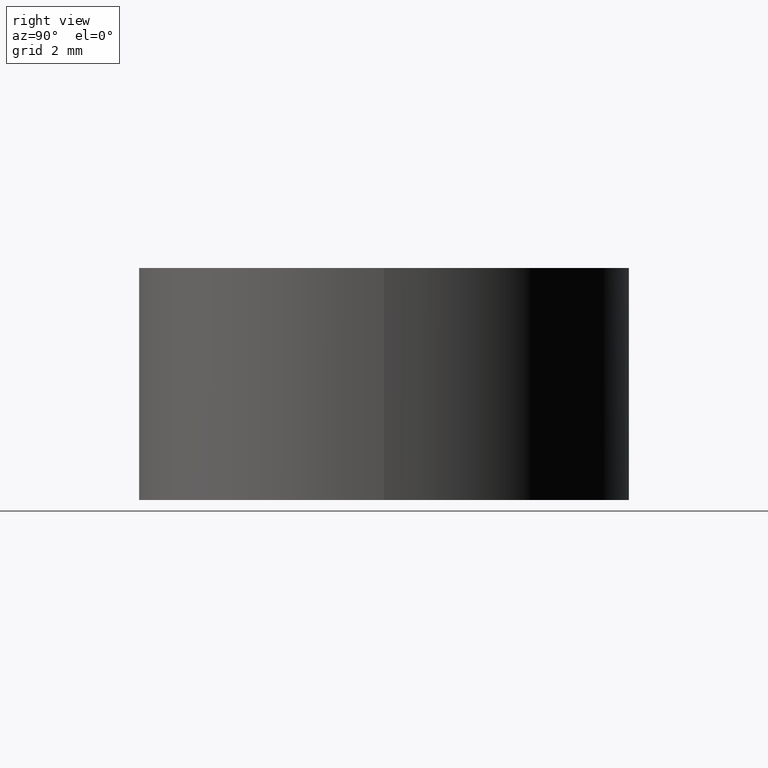
[diagram: clean part render]
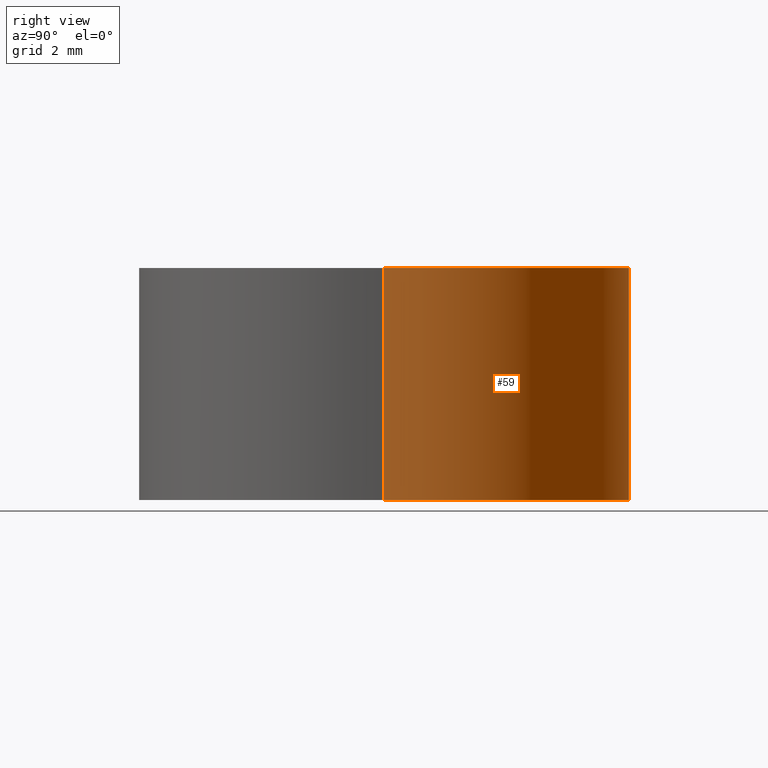
[diagram: same view with one face highlighted and labeled with its STEP entity id]
A machine part, right view. The second image highlights one B-rep face of the part: STEP entity #59.
In plain terms, the highlighted cylindrical surface (partial cylindrical patch) has radius 6.35 mm, axis along (-0, -0, -1).
Its self-contained STEP definition (entity closure, byte-faithful):
#1 = CARTESIAN_POINT ( 'NONE',  ( -6.349999999999997868, 0.000000000000000000, 5.999999999999998224 ) ) ;
#3 = LINE ( 'NONE', #119, #201 ) ;
#4 = LINE ( 'NONE', #68, #38 ) ;
#6 = DIRECTION ( 'NONE',  ( -0.000000000000000000, -0.000000000000000000, -1.000000000000000000 ) ) ;
#8 = EDGE_CURVE ( 'NONE', #54, #79, #3, .T. ) ;
#15 = AXIS2_PLACEMENT_3D ( 'NONE', #137, #192, #86 ) ;
#19 = ORIENTED_EDGE ( 'NONE', *, *, #97, .T. ) ;
#20 = CIRCLE ( 'NONE', #146, 6.349999999999999645 ) ;
#36 = VERTEX_POINT ( 'NONE', #1 ) ;
#38 = VECTOR ( 'NONE', #6, 1000.000000000000000 ) ;
#39 = DIRECTION ( 'NONE',  ( 1.000000000000000000, 0.000000000000000000, 0.000000000000000000 ) ) ;
#50 = EDGE_CURVE ( 'NONE', #36, #147, #4, .T. ) ;
#54 = VERTEX_POINT ( 'NONE', #105 ) ;
#59 = ADVANCED_FACE ( 'NONE', ( #177 ), #175, .T. ) ;
#67 = ORIENTED_EDGE ( 'NONE', *, *, #8, .T. ) ;
#68 = CARTESIAN_POINT ( 'NONE',  ( -6.349999999999999645, 0.000000000000000000, 6.000000000000000000 ) ) ;
#79 = VERTEX_POINT ( 'NONE', #109 ) ;
#85 = DIRECTION ( 'NONE',  ( -0.000000000000000000, -0.000000000000000000, -1.000000000000000000 ) ) ;
#86 = DIRECTION ( 'NONE',  ( -1.000000000000000000, 0.000000000000000000, 0.000000000000000000 ) ) ;
#88 = EDGE_CURVE ( 'NONE', #79, #147, #20, .T. ) ;
#89 = AXIS2_PLACEMENT_3D ( 'NONE', #123, #85, #39 ) ;
#95 = DIRECTION ( 'NONE',  ( 1.000000000000000000, 0.000000000000000000, 0.000000000000000000 ) ) ;
#97 = EDGE_CURVE ( 'NONE', #36, #54, #181, .T. ) ;
#104 = ORIENTED_EDGE ( 'NONE', *, *, #50, .F. ) ;
#105 = CARTESIAN_POINT ( 'NONE',  ( 6.350000000000006750, 7.776507174585701038E-16, 5.999999999999998224 ) ) ;
#109 = CARTESIAN_POINT ( 'NONE',  ( 6.349999999999999645, 7.776507174585692163E-16, 0.000000000000000000 ) ) ;
#119 = CARTESIAN_POINT ( 'NONE',  ( 6.349999999999999645, 7.776507174585692163E-16, 6.000000000000000000 ) ) ;
#122 = CARTESIAN_POINT ( 'NONE',  ( -6.349999999999999645, 0.000000000000000000, 0.000000000000000000 ) ) ;
#123 = CARTESIAN_POINT ( 'NONE',  ( 4.336808689942017736E-15, 0.000000000000000000, 5.999999999999998224 ) ) ;
#136 = EDGE_LOOP ( 'NONE', ( #19, #67, #173, #104 ) ) ;
#137 = CARTESIAN_POINT ( 'NONE',  ( 0.000000000000000000, 0.000000000000000000, 6.000000000000000000 ) ) ;
#146 = AXIS2_PLACEMENT_3D ( 'NONE', #158, #179, #95 ) ;
#147 = VERTEX_POINT ( 'NONE', #122 ) ;
#153 = DIRECTION ( 'NONE',  ( -0.000000000000000000, -0.000000000000000000, -1.000000000000000000 ) ) ;
#158 = CARTESIAN_POINT ( 'NONE',  ( 0.000000000000000000, 0.000000000000000000, 0.000000000000000000 ) ) ;
#173 = ORIENTED_EDGE ( 'NONE', *, *, #88, .T. ) ;
#175 = CYLINDRICAL_SURFACE ( 'NONE', #15, 6.349999999999999645 ) ;
#177 = FACE_OUTER_BOUND ( 'NONE', #136, .T. ) ;
#179 = DIRECTION ( 'NONE',  ( 0.000000000000000000, 0.000000000000000000, 1.000000000000000000 ) ) ;
#181 = CIRCLE ( 'NONE', #89, 6.350000000000002309 ) ;
#192 = DIRECTION ( 'NONE',  ( -0.000000000000000000, -0.000000000000000000, -1.000000000000000000 ) ) ;
#201 = VECTOR ( 'NONE', #153, 1000.000000000000000 ) ;